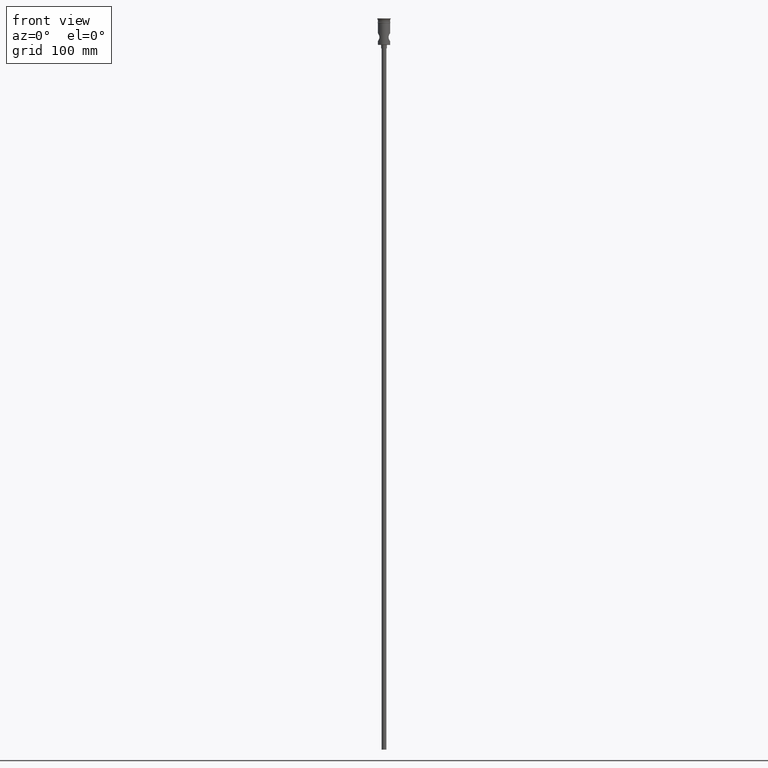
[diagram: clean part render]
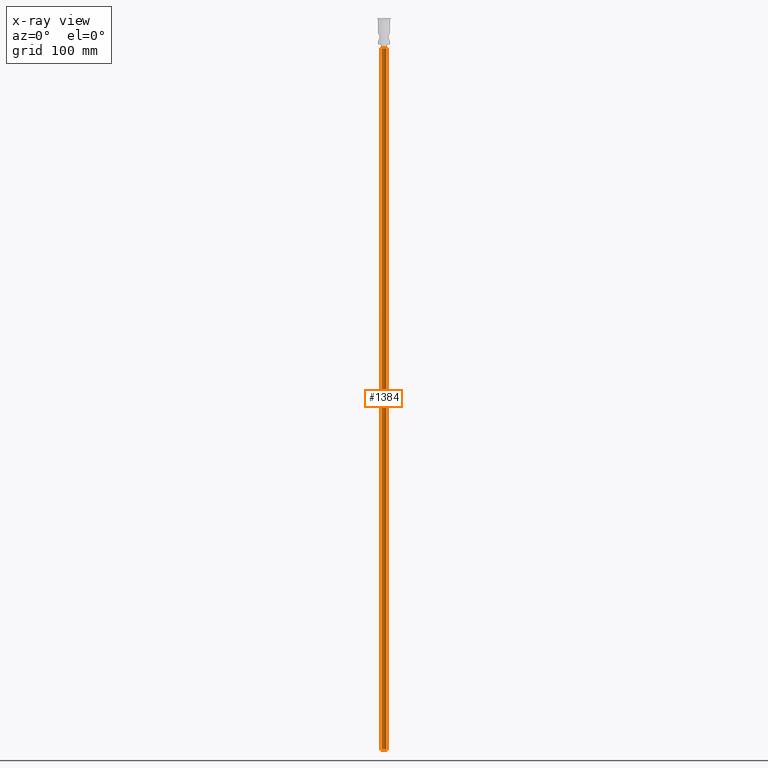
[diagram: x-ray — body ghosted, one internal face saturated and labeled with its STEP entity id]
A machine part, front view, then the same camera in x-ray: the body is ghosted and one INTERNAL B-rep face — a face not visible from any outside direction — is saturated and labeled: STEP entity #1384.
In plain terms, the highlighted cylindrical surface (edge-blend (fillet) strip) has radius 2 mm, axis along (-0, -0, 1).
Its self-contained STEP definition (entity closure, byte-faithful):
#63 = AXIS2_PLACEMENT_3D ( 'NONE', #906, #498, #933 ) ;
#75 = DIRECTION ( 'NONE',  ( 0.000000000000000000, 0.000000000000000000, -1.000000000000000000 ) ) ;
#89 = EDGE_CURVE ( 'NONE', #754, #828, #613, .T. ) ;
#145 = DIRECTION ( 'NONE',  ( 0.000000000000000000, 0.000000000000000000, -1.000000000000000000 ) ) ;
#154 = CARTESIAN_POINT ( 'NONE',  ( 0.000000000000000000, 0.000000000000000000, -622.4999999999998863 ) ) ;
#259 = CARTESIAN_POINT ( 'NONE',  ( -2.000000000000000000, 2.449293598294706414E-16, -622.4999999999998863 ) ) ;
#263 = CARTESIAN_POINT ( 'NONE',  ( -2.000000000000000000, 2.449293598294706414E-16, -25.50000000000000000 ) ) ;
#279 = AXIS2_PLACEMENT_3D ( 'NONE', #846, #75, #1426 ) ;
#305 = CIRCLE ( 'NONE', #279, 2.000000000000000000 ) ;
#426 = EDGE_CURVE ( 'NONE', #556, #671, #1391, .T. ) ;
#429 = ORIENTED_EDGE ( 'NONE', *, *, #89, .T. ) ;
#484 = DIRECTION ( 'NONE',  ( -1.000000000000000000, 0.000000000000000000, 0.000000000000000000 ) ) ;
#498 = DIRECTION ( 'NONE',  ( -0.000000000000000000, -0.000000000000000000, 1.000000000000000000 ) ) ;
#556 = VERTEX_POINT ( 'NONE', #575 ) ;
#575 = CARTESIAN_POINT ( 'NONE',  ( 2.000000000000000000, 0.000000000000000000, -622.4999999999998863 ) ) ;
#613 = LINE ( 'NONE', #259, #1368 ) ;
#632 = FACE_OUTER_BOUND ( 'NONE', #639, .T. ) ;
#639 = EDGE_LOOP ( 'NONE', ( #1196, #429, #1207, #672 ) ) ;
#671 = VERTEX_POINT ( 'NONE', #1016 ) ;
#672 = ORIENTED_EDGE ( 'NONE', *, *, #426, .F. ) ;
#679 = DIRECTION ( 'NONE',  ( -0.000000000000000000, -0.000000000000000000, 1.000000000000000000 ) ) ;
#684 = EDGE_CURVE ( 'NONE', #754, #556, #1419, .T. ) ;
#720 = VECTOR ( 'NONE', #1025, 1000.000000000000000 ) ;
#754 = VERTEX_POINT ( 'NONE', #824 ) ;
#824 = CARTESIAN_POINT ( 'NONE',  ( -2.000000000000000000, 2.449293598294706414E-16, -622.4999999999998863 ) ) ;
#828 = VERTEX_POINT ( 'NONE', #263 ) ;
#846 = CARTESIAN_POINT ( 'NONE',  ( 0.000000000000000000, 0.000000000000000000, -25.50000000000000000 ) ) ;
#906 = CARTESIAN_POINT ( 'NONE',  ( 0.000000000000000000, 0.000000000000000000, -622.4999999999998863 ) ) ;
#933 = DIRECTION ( 'NONE',  ( 1.000000000000000000, 0.000000000000000000, 0.000000000000000000 ) ) ;
#1016 = CARTESIAN_POINT ( 'NONE',  ( 2.000000000000000000, 0.000000000000000000, -25.50000000000000000 ) ) ;
#1025 = DIRECTION ( 'NONE',  ( -0.000000000000000000, -0.000000000000000000, 1.000000000000000000 ) ) ;
#1050 = CARTESIAN_POINT ( 'NONE',  ( 2.000000000000000000, 0.000000000000000000, -622.4999999999998863 ) ) ;
#1149 = CYLINDRICAL_SURFACE ( 'NONE', #63, 2.000000000000000000 ) ;
#1174 = EDGE_CURVE ( 'NONE', #828, #671, #305, .T. ) ;
#1196 = ORIENTED_EDGE ( 'NONE', *, *, #684, .F. ) ;
#1207 = ORIENTED_EDGE ( 'NONE', *, *, #1174, .T. ) ;
#1232 = AXIS2_PLACEMENT_3D ( 'NONE', #154, #145, #484 ) ;
#1368 = VECTOR ( 'NONE', #679, 1000.000000000000000 ) ;
#1384 = ADVANCED_FACE ( 'NONE', ( #632 ), #1149, .T. ) ;
#1391 = LINE ( 'NONE', #1050, #720 ) ;
#1419 = CIRCLE ( 'NONE', #1232, 2.000000000000000000 ) ;
#1426 = DIRECTION ( 'NONE',  ( -1.000000000000000000, 0.000000000000000000, 0.000000000000000000 ) ) ;